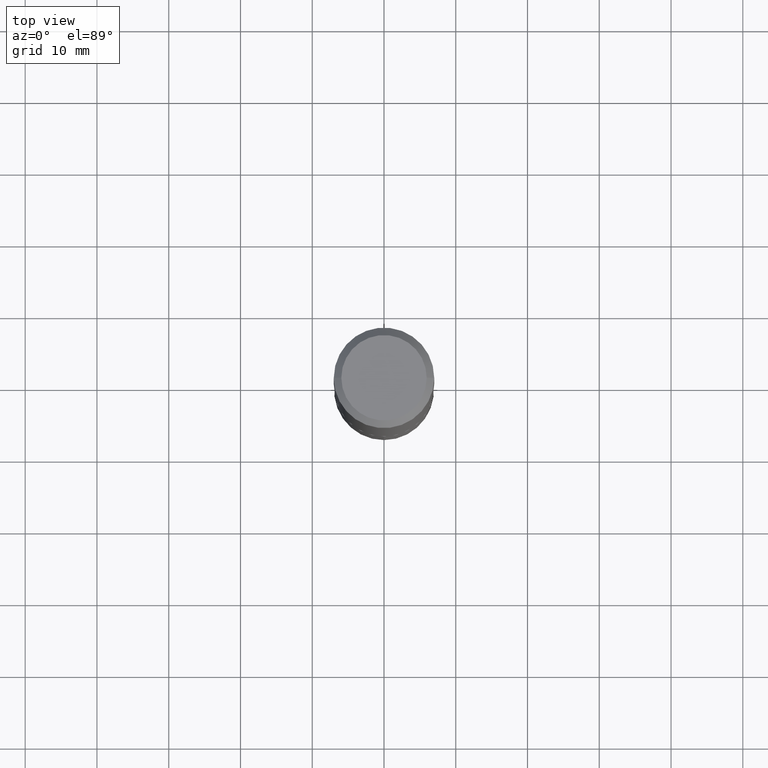
[diagram: clean part render]
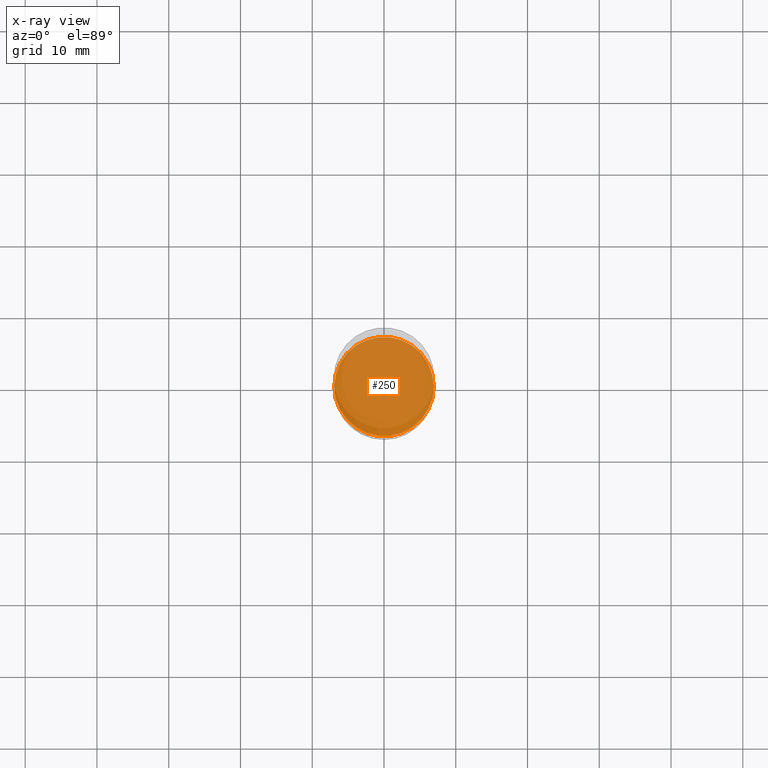
[diagram: x-ray — body ghosted, one internal face saturated and labeled with its STEP entity id]
A machine part, top view, then the same camera in x-ray: the body is ghosted and one INTERNAL B-rep face — a face not visible from any outside direction — is saturated and labeled: STEP entity #250.
In plain terms, the highlighted planar face has unit normal (-0, 0, 1).
Its self-contained STEP definition (entity closure, byte-faithful):
#58 = EDGE_LOOP ( 'NONE', ( #407, #186 ) ) ;
#85 = EDGE_CURVE ( 'NONE', #382, #403, #341, .T. ) ;
#88 = CARTESIAN_POINT ( 'NONE',  ( -0.2729500000000000259, -7.956273971189012456E-15, -2.834999999999999520 ) ) ;
#95 = CARTESIAN_POINT ( 'NONE',  ( 6.932904065534861534E-29, -9.898349595620316510E-15, -2.834999999999999520 ) ) ;
#107 = DIRECTION ( 'NONE',  ( 1.000000000000000000, -6.982962677686265922E-15, 4.876176775795935793E-29 ) ) ;
#109 = AXIS2_PLACEMENT_3D ( 'NONE', #230, #405, #376 ) ;
#142 = AXIS2_PLACEMENT_3D ( 'NONE', #95, #245, #219 ) ;
#186 = ORIENTED_EDGE ( 'NONE', *, *, #347, .F. ) ;
#214 = CIRCLE ( 'NONE', #109, 0.2729500000000000259 ) ;
#219 = DIRECTION ( 'NONE',  ( 1.000000000000000000, -6.982962677686266711E-15, 0.000000000000000000 ) ) ;
#228 = FACE_OUTER_BOUND ( 'NONE', #58, .T. ) ;
#230 = CARTESIAN_POINT ( 'NONE',  ( 6.932904065534861534E-29, -9.898349595620316510E-15, -2.834999999999999520 ) ) ;
#245 = DIRECTION ( 'NONE',  ( -2.445468806185136597E-29, 3.491481338843145583E-15, 1.000000000000000000 ) ) ;
#250 = ADVANCED_FACE ( 'NONE', ( #228 ), #332, .F. ) ;
#305 = CARTESIAN_POINT ( 'NONE',  ( 0.2729500000000000259, -1.180434925849478431E-14, -2.834999999999999520 ) ) ;
#332 = PLANE ( 'NONE',  #450 ) ;
#341 = CIRCLE ( 'NONE', #142, 0.2729500000000000259 ) ;
#347 = EDGE_CURVE ( 'NONE', #403, #382, #214, .T. ) ;
#362 = DIRECTION ( 'NONE',  ( -2.438088387897960049E-29, 3.491481338843145188E-15, 1.000000000000000000 ) ) ;
#369 = CARTESIAN_POINT ( 'NONE',  ( 6.932904065534861534E-29, -9.898349595620316510E-15, -2.834999999999999520 ) ) ;
#376 = DIRECTION ( 'NONE',  ( 1.000000000000000000, -6.982962677686266711E-15, 0.000000000000000000 ) ) ;
#382 = VERTEX_POINT ( 'NONE', #305 ) ;
#403 = VERTEX_POINT ( 'NONE', #88 ) ;
#405 = DIRECTION ( 'NONE',  ( -2.445468806185136597E-29, 3.491481338843145583E-15, 1.000000000000000000 ) ) ;
#407 = ORIENTED_EDGE ( 'NONE', *, *, #85, .F. ) ;
#450 = AXIS2_PLACEMENT_3D ( 'NONE', #369, #362, #107 ) ;